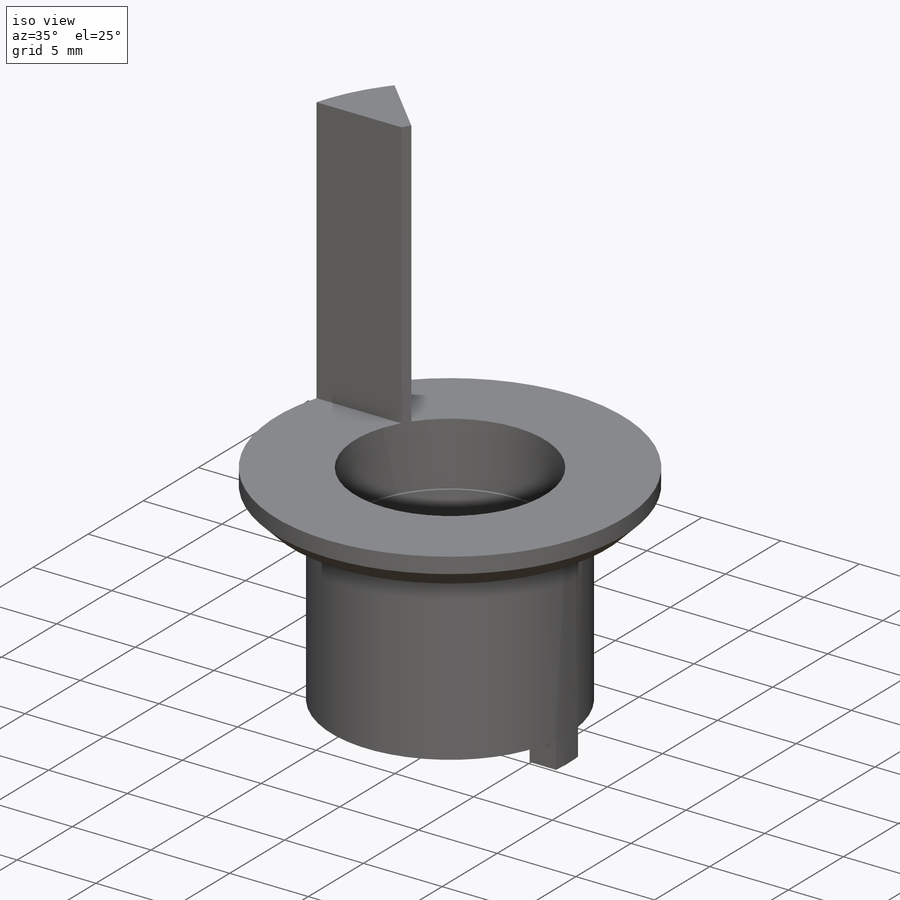
[diagram: iso view]
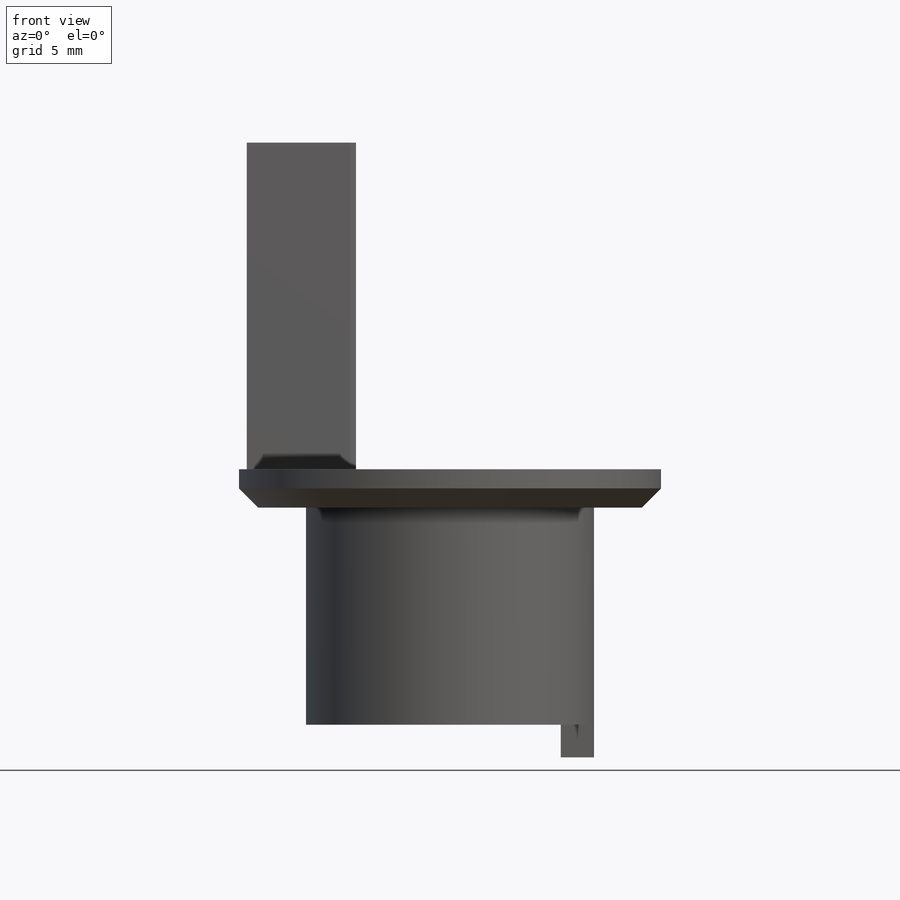
[diagram: front view]
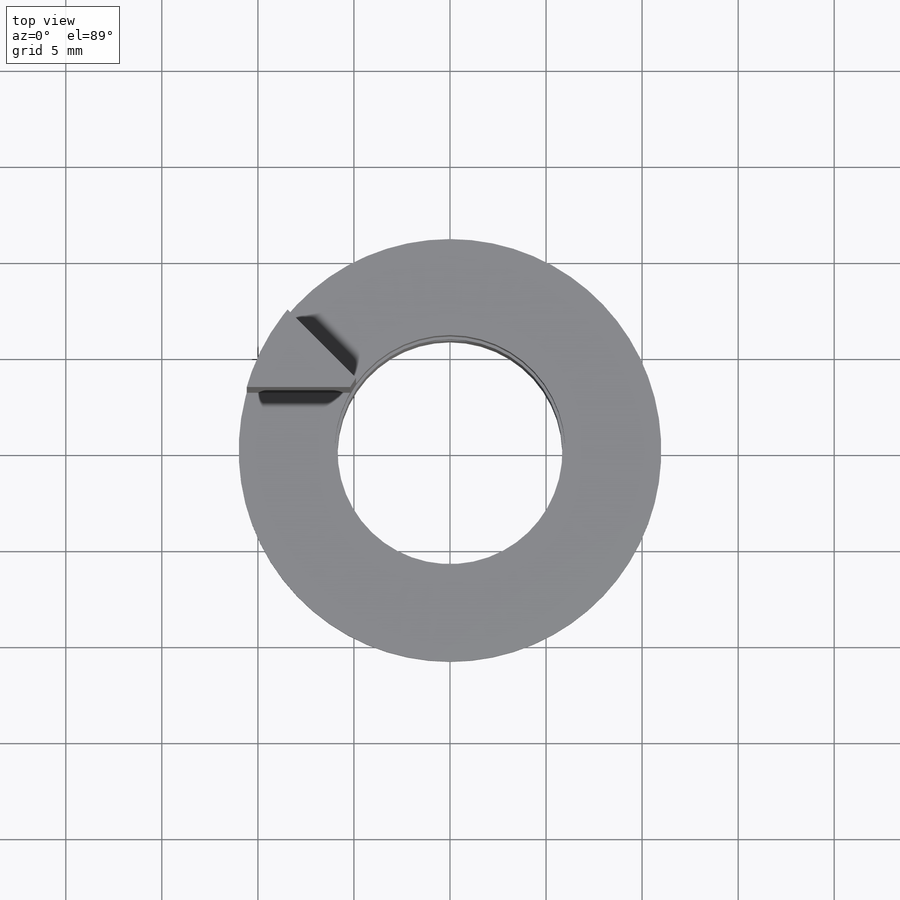
[diagram: top view]
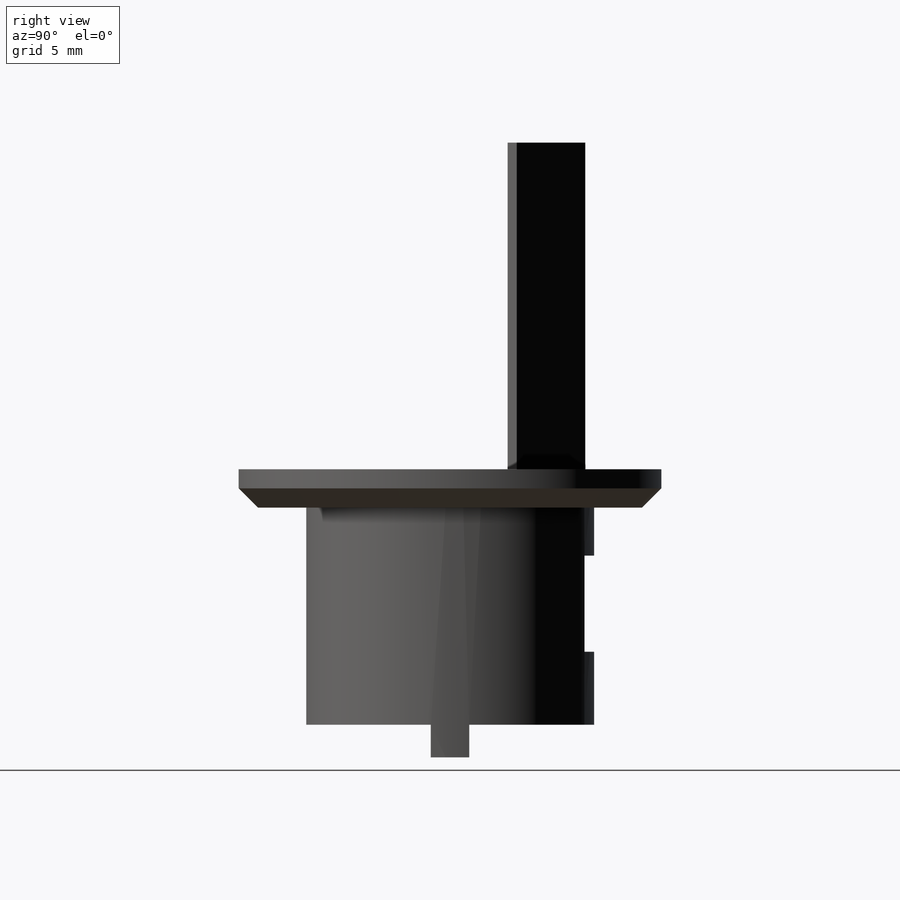
[diagram: right view]
SOLIDWORKS PART (.sldprt)
format: sldprt  version: not decoded by parser v0  size: 267,264 bytes
history: native  units: mm
features: sketch x7, cut_extrude x4, plane x3, material x1, revolve x1, chamfer x1, hole x1 (+13 scaffold rows collapsed)
feature tree (31):
  scaffold x13  (default folders/planes/origin — collapsed)
  material  "2024-T4"
  plane  "Спереди"
  plane  "Сверху"
  plane  "Справа"
  sketch  "Эскиз1"  dims[D1=11.7mm D2=11.0mm D3=13.0mm D4=32.0mm D5=10.0mm D6=15.0mm D7=22.0mm D8=12.0mm D9=21.0mm]
  revolve  "Повернуть1"  Angle=360deg
  sketch  "Эскиз2"  dims[c1.D1=8.0mm c1.D3=20.0mm c2.D1=3.0mm c2.D2=3.0mm c2.D3=5.0mm c2.D4=3.0mm c2.D5=4.0mm c3.D2=~4.367117mm c4.D2=45.0deg c4.D3=1.0mm c4.D1=3.0mm]
  cut_extrude  "Вырез-Вытянуть2"  Depth=17mm
  sketch  "Эскиз3"  dims[c1.D1=~6.697438mm c2.D1=45.0deg c2.D2=8.0mm c2.D3=8.0mm c2.D4=8.0mm]
  cut_extrude  "Вырез-Вытянуть3"  [1 undecoded]
  chamfer  "Фаска1"  Distance=1mm Angle=45deg
  sketch  "Эскиз5"  dims[c1.D1=7.5mm c2.D1=16.0deg c2.D2=~5.386853mm c3.D2=8.0deg c3.D1=1.0mm c4.D2=2.0mm]
  cut_extrude  "Вырез-Вытянуть4"  Depth=1.7mm
  sketch  "Эскиз6"  dims[D1=5.0mm D2=3.8mm D3=7.0mm]
  cut_extrude  "Вырез-Вытянуть5"  [1 undecoded]
  hole  "Диаметр отверстия Ø2.3 (2.3)1"  [1 undecoded]
  sketch  "Трехмерный эскиз1"  dims[D1=8.0mm]
  sketch  "Эскиз4"  dims[hole-wizard template sketch: 54 standard entries collapsed; hole parameters kept: c17.Диаметр сквозного отверстия=2.3mm c17.Глубина сквозного отверстия=1.15mm c17.Диаметр передней зенковки=2.5mm c17.D4=~3.666174mm c17.Угол передней зенковки=90.0deg]
decode coverage: 11 of 14 modeling features carry decoded parameters
note: ~ marks probable driven/reference dimensions
note: 3 parameter values undecoded
summary: no parameter record found for 3 features
note: suppression state not decoded; provenance and decode notes live in map.json
